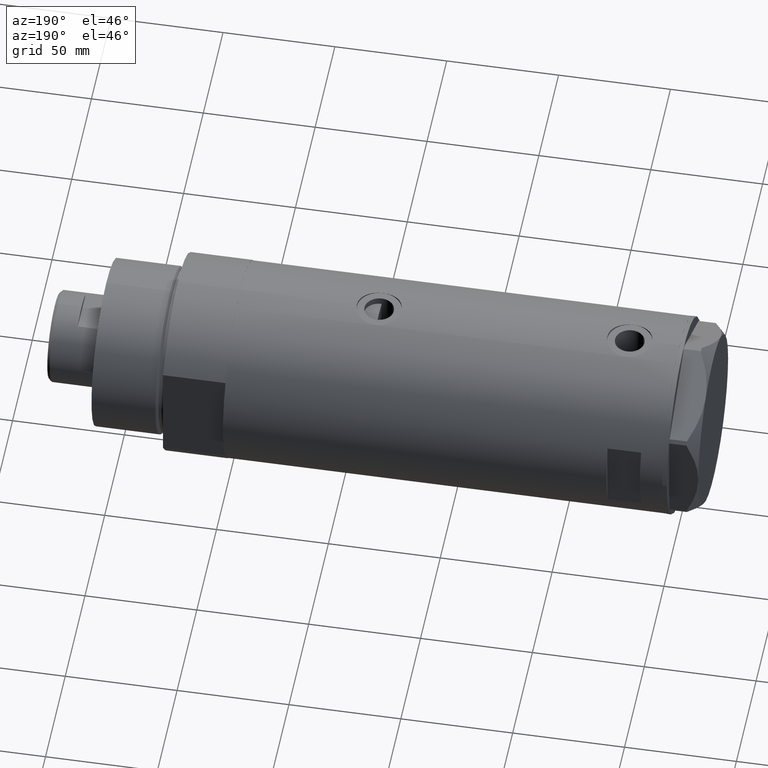
[diagram: clean part render]
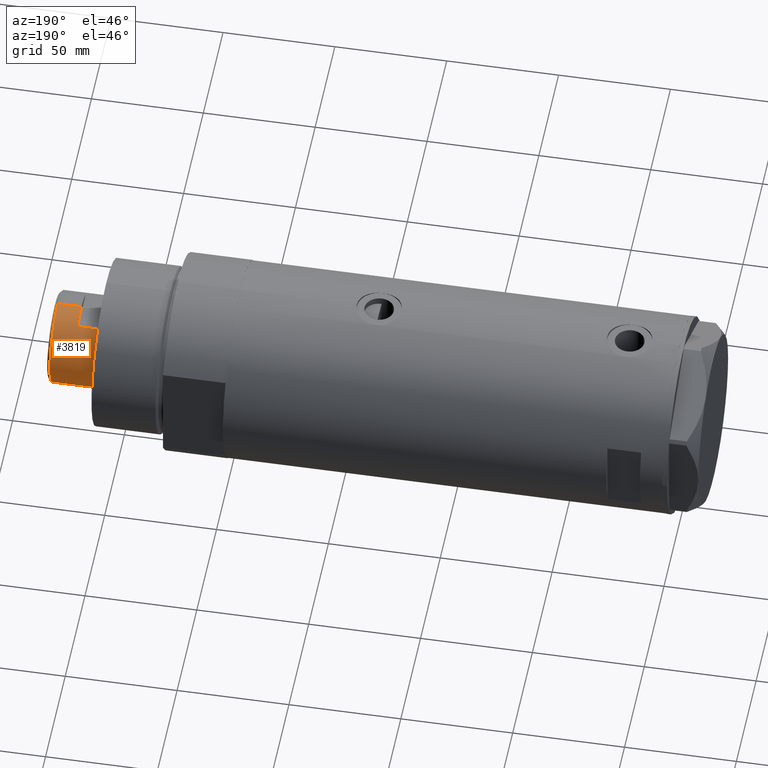
[diagram: same view with one face highlighted and labeled with its STEP entity id]
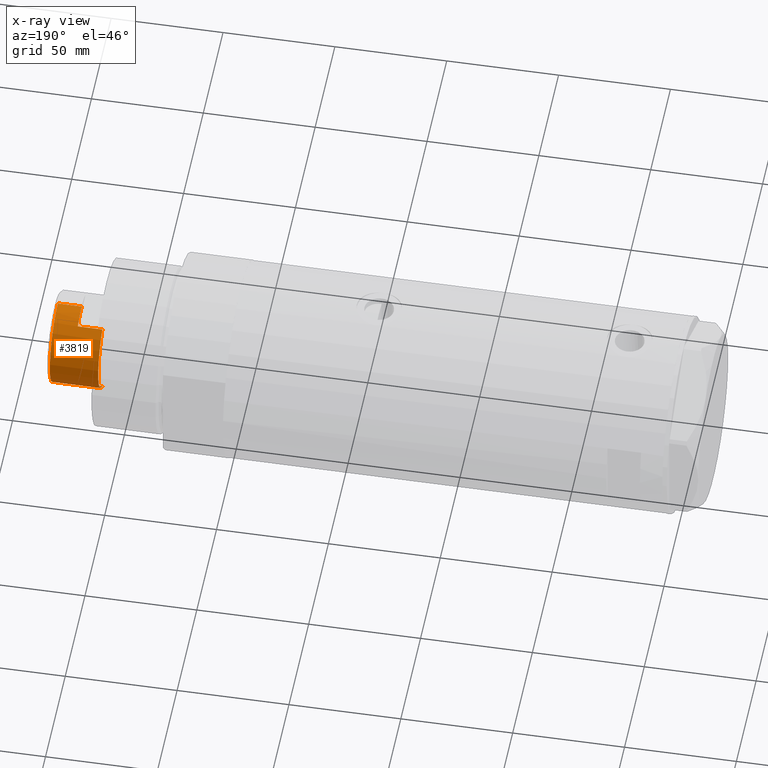
[diagram: x-ray of the same camera — body ghosted, the highlighted face saturated]
A machine part, auxiliary view. The second image highlights one B-rep face of the part: STEP entity #3819.
The next image is the same camera in x-ray: the body ghosted, the highlighted face saturated — about 0% of this face is hidden behind the body in this view.
In plain terms, the highlighted cylindrical surface (partial cylindrical patch) has radius 20.5 mm, axis along (-1, -0, 0).
Its self-contained STEP definition (entity closure, byte-faithful):
#64 = EDGE_CURVE ( 'NONE', #3030, #1402, #2731, .T. ) ;
#82 = VERTEX_POINT ( 'NONE', #3159 ) ;
#134 = ORIENTED_EDGE ( 'NONE', *, *, #1652, .T. ) ;
#152 = VECTOR ( 'NONE', #3088, 1000.000000000000000 ) ;
#168 = VERTEX_POINT ( 'NONE', #3716 ) ;
#424 = VERTEX_POINT ( 'NONE', #642 ) ;
#521 = EDGE_CURVE ( 'NONE', #424, #4215, #2577, .T. ) ;
#556 = DIRECTION ( 'NONE',  ( -0.000000000000000000, -0.000000000000000000, -1.000000000000000000 ) ) ;
#642 = CARTESIAN_POINT ( 'NONE',  ( -20.50000000000000355, 0.000000000000000000, 251.9000000000001194 ) ) ;
#765 = CARTESIAN_POINT ( 'NONE',  ( 20.50000000000000355, 2.510525938252074481E-15, 251.9000000000001194 ) ) ;
#897 = AXIS2_PLACEMENT_3D ( 'NONE', #4151, #2520, #1180 ) ;
#899 = VERTEX_POINT ( 'NONE', #1509 ) ;
#928 = DIRECTION ( 'NONE',  ( 1.000000000000000000, 0.000000000000000000, 0.000000000000000000 ) ) ;
#1053 = DIRECTION ( 'NONE',  ( 1.000000000000000000, 0.000000000000000000, 0.000000000000000000 ) ) ;
#1059 = CARTESIAN_POINT ( 'NONE',  ( -20.50000000000000000, 0.000000000000000000, 241.3000000000000114 ) ) ;
#1106 = EDGE_CURVE ( 'NONE', #82, #899, #1576, .T. ) ;
#1180 = DIRECTION ( 'NONE',  ( 1.000000000000000000, 0.000000000000000000, 0.000000000000000000 ) ) ;
#1188 = AXIS2_PLACEMENT_3D ( 'NONE', #1732, #4203, #1053 ) ;
#1251 = EDGE_CURVE ( 'NONE', #1402, #899, #3027, .T. ) ;
#1352 = ORIENTED_EDGE ( 'NONE', *, *, #3636, .T. ) ;
#1402 = VERTEX_POINT ( 'NONE', #4052 ) ;
#1473 = EDGE_CURVE ( 'NONE', #82, #4215, #4272, .T. ) ;
#1509 = CARTESIAN_POINT ( 'NONE',  ( -17.97852886083842705, 9.849999999999965894, 230.3000000000000114 ) ) ;
#1536 = DIRECTION ( 'NONE',  ( 1.000000000000000000, 0.000000000000000000, 0.000000000000000000 ) ) ;
#1576 = LINE ( 'NONE', #3314, #4417 ) ;
#1588 = ORIENTED_EDGE ( 'NONE', *, *, #521, .F. ) ;
#1652 = EDGE_CURVE ( 'NONE', #4003, #168, #3735, .T. ) ;
#1687 = CARTESIAN_POINT ( 'NONE',  ( 20.50000000000000355, 2.510525938252074481E-15, 241.3000000000000114 ) ) ;
#1732 = CARTESIAN_POINT ( 'NONE',  ( 0.000000000000000000, 0.000000000000000000, 230.3000000000000114 ) ) ;
#1785 = DIRECTION ( 'NONE',  ( -0.000000000000000000, -0.000000000000000000, -1.000000000000000000 ) ) ;
#1803 = AXIS2_PLACEMENT_3D ( 'NONE', #4012, #4438, #928 ) ;
#1828 = ORIENTED_EDGE ( 'NONE', *, *, #1251, .T. ) ;
#1978 = CARTESIAN_POINT ( 'NONE',  ( 0.000000000000000000, 0.000000000000000000, 241.3000000000000114 ) ) ;
#2051 = DIRECTION ( 'NONE',  ( -0.000000000000000000, -0.000000000000000000, -1.000000000000000000 ) ) ;
#2191 = EDGE_LOOP ( 'NONE', ( #1352, #134, #3095, #3300, #1828, #3166, #3133, #1588 ) ) ;
#2286 = CARTESIAN_POINT ( 'NONE',  ( -20.50000000000000355, 0.000000000000000000, 241.3000000000000114 ) ) ;
#2372 = CIRCLE ( 'NONE', #4059, 20.50000000000000355 ) ;
#2426 = VECTOR ( 'NONE', #2051, 1000.000000000000000 ) ;
#2512 = AXIS2_PLACEMENT_3D ( 'NONE', #1978, #1785, #2805 ) ;
#2520 = DIRECTION ( 'NONE',  ( 0.000000000000000000, 0.000000000000000000, 1.000000000000000000 ) ) ;
#2577 = LINE ( 'NONE', #2286, #2941 ) ;
#2643 = FACE_OUTER_BOUND ( 'NONE', #2191, .T. ) ;
#2731 = LINE ( 'NONE', #3829, #152 ) ;
#2805 = DIRECTION ( 'NONE',  ( -1.000000000000000000, 0.000000000000000000, 0.000000000000000000 ) ) ;
#2913 = DIRECTION ( 'NONE',  ( 0.000000000000000000, 0.000000000000000000, -1.000000000000000000 ) ) ;
#2941 = VECTOR ( 'NONE', #3687, 1000.000000000000000 ) ;
#3027 = CIRCLE ( 'NONE', #1188, 20.49999999999998934 ) ;
#3030 = VERTEX_POINT ( 'NONE', #4552 ) ;
#3088 = DIRECTION ( 'NONE',  ( -0.000000000000000000, -0.000000000000000000, -1.000000000000000000 ) ) ;
#3095 = ORIENTED_EDGE ( 'NONE', *, *, #4428, .T. ) ;
#3133 = ORIENTED_EDGE ( 'NONE', *, *, #1473, .T. ) ;
#3159 = CARTESIAN_POINT ( 'NONE',  ( -17.97852886083842705, 9.849999999999997868, 241.3000000000000114 ) ) ;
#3166 = ORIENTED_EDGE ( 'NONE', *, *, #1106, .F. ) ;
#3300 = ORIENTED_EDGE ( 'NONE', *, *, #64, .T. ) ;
#3314 = CARTESIAN_POINT ( 'NONE',  ( -17.97852886083842705, 9.849999999999997868, 241.3000000000000114 ) ) ;
#3636 = EDGE_CURVE ( 'NONE', #424, #4003, #2372, .T. ) ;
#3687 = DIRECTION ( 'NONE',  ( -0.000000000000000000, -0.000000000000000000, -1.000000000000000000 ) ) ;
#3708 = CYLINDRICAL_SURFACE ( 'NONE', #2512, 20.50000000000000355 ) ;
#3716 = CARTESIAN_POINT ( 'NONE',  ( 20.50000000000000000, 2.510525938252074481E-15, 241.3000000000000114 ) ) ;
#3735 = LINE ( 'NONE', #1687, #2426 ) ;
#3762 = CIRCLE ( 'NONE', #1803, 20.50000000000000000 ) ;
#3819 = ADVANCED_FACE ( 'NONE', ( #2643 ), #3708, .T. ) ;
#3829 = CARTESIAN_POINT ( 'NONE',  ( 17.97852886083842705, 9.849999999999997868, 241.3000000000000114 ) ) ;
#4003 = VERTEX_POINT ( 'NONE', #765 ) ;
#4012 = CARTESIAN_POINT ( 'NONE',  ( 0.000000000000000000, 0.000000000000000000, 241.3000000000000114 ) ) ;
#4052 = CARTESIAN_POINT ( 'NONE',  ( 17.97852886083842705, 9.849999999999997868, 230.3000000000000114 ) ) ;
#4059 = AXIS2_PLACEMENT_3D ( 'NONE', #4314, #2913, #1536 ) ;
#4151 = CARTESIAN_POINT ( 'NONE',  ( 0.000000000000000000, 0.000000000000000000, 241.3000000000000114 ) ) ;
#4203 = DIRECTION ( 'NONE',  ( 0.000000000000000000, 0.000000000000000000, 1.000000000000000000 ) ) ;
#4215 = VERTEX_POINT ( 'NONE', #1059 ) ;
#4272 = CIRCLE ( 'NONE', #897, 20.50000000000000000 ) ;
#4314 = CARTESIAN_POINT ( 'NONE',  ( 0.000000000000000000, 0.000000000000000000, 251.9000000000001194 ) ) ;
#4417 = VECTOR ( 'NONE', #556, 1000.000000000000000 ) ;
#4428 = EDGE_CURVE ( 'NONE', #168, #3030, #3762, .T. ) ;
#4438 = DIRECTION ( 'NONE',  ( 0.000000000000000000, 0.000000000000000000, 1.000000000000000000 ) ) ;
#4552 = CARTESIAN_POINT ( 'NONE',  ( 17.97852886083842705, 9.849999999999997868, 241.3000000000000114 ) ) ;